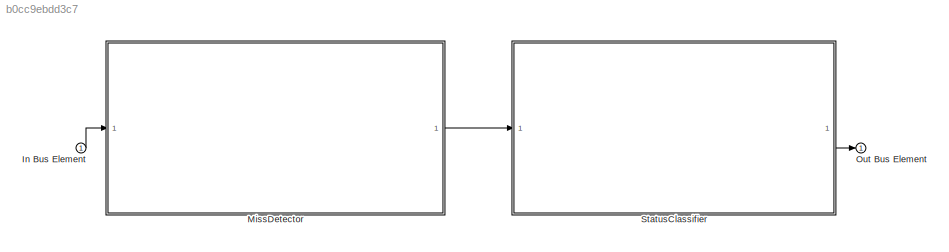
MODEL slx_b0cc9ebdd3c7
KIND model
CONFIG AbsTol = auto
CONFIG EnableMultiTasking = off
CONFIG FixedStep = 0.1
CONFIG MaxStep = 0.5
CONFIG MinStep = auto
CONFIG RelTol = 1e-3
CONFIG SampleTimeConstraint = Unconstrained
CONFIG SolverName = FixedStepDiscrete
CONFIG StartTime = 0.0
CONFIG StopTime = 30.0
BLOCK [Inport] In Bus Element
BLOCK [ModelReference] MissDetector
  ModelNameDialog = MissDetector
  ModelReferenceVersion = 1.15
  PortSchema = {"entries":[{"content":{"headerSize":38,"margin":15,"minimumSpacing":25,"sides":[{"content":{"connectorIds":["In1"]},"type":"ConnectorPlacement.EquallySpacedRectSide","uuid":"aa851da1-27b8-4fcf-8684-3a54297bf660"},{"content":{"connectorIds":["Out1"],"side":"RIGHT"},"type":"ConnectorPlacement.EquallySpacedRectSide","uuid":"c1095fb9-efbc-41fb-9239-c8e83f626961"},{"content":{"side":"TOP"},"type":"Con...<+270ch>
BLOCK [Outport] Out Bus Element
BLOCK [ModelReference] StatusClassifier
  ModelNameDialog = StatusClassifier
  ModelReferenceVersion = 1.18
  PortSchema = {"entries":[{"content":{"headerSize":38,"margin":15,"minimumSpacing":25,"sides":[{"content":{"connectorIds":["In1"]},"type":"ConnectorPlacement.EquallySpacedRectSide","uuid":"aa851da1-27b8-4fcf-8684-3a54297bf660"},{"content":{"connectorIds":["Out1"],"side":"RIGHT"},"type":"ConnectorPlacement.EquallySpacedRectSide","uuid":"c1095fb9-efbc-41fb-9239-c8e83f626961"},{"content":{"side":"TOP"},"type":"Con...<+270ch>
LINE In Bus Element:1 -> MissDetector:1
LINE MissDetector:1 -> StatusClassifier:1
LINE StatusClassifier:1 -> Out Bus Element:1
